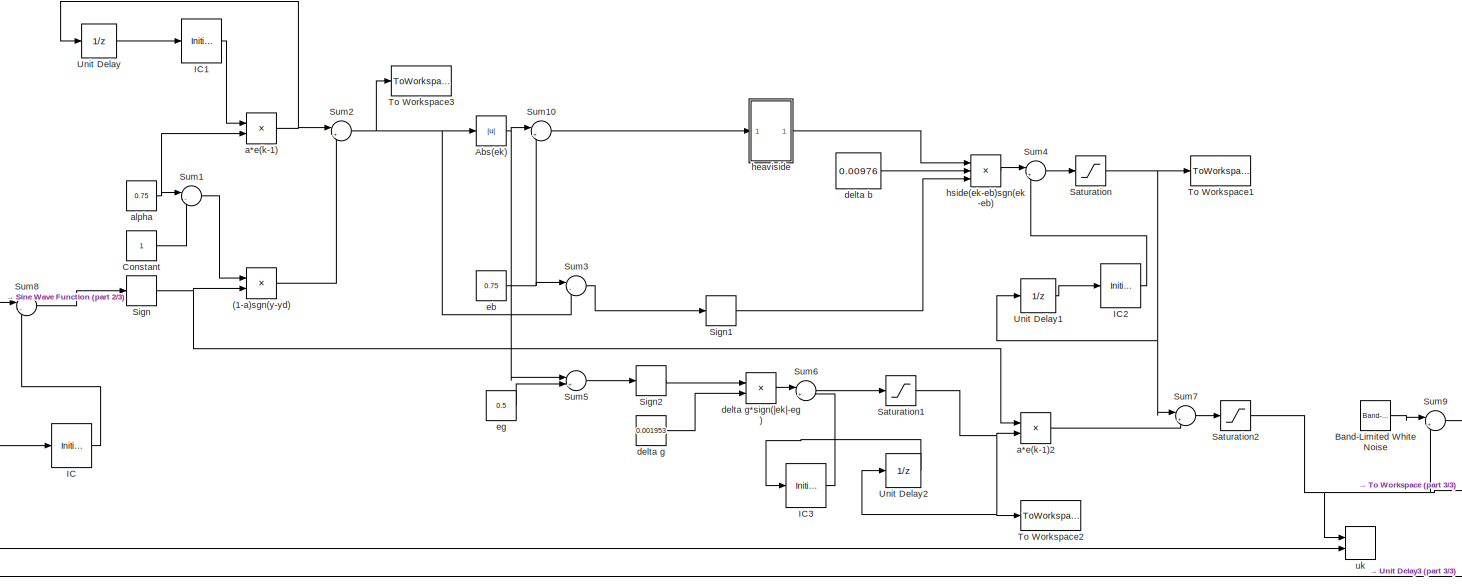
[diagram: root canvas - part 1/3, most of the canvas]
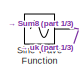
[diagram: root canvas - part 2/3, middle left region]
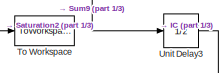
[diagram: root canvas - part 3/3, bottom right region]
MODEL slx_e6e3c1220217
KIND model
CONFIG AbsTol = auto
CONFIG FixedStep = 0.1
CONFIG MaxStep = auto
CONFIG MinStep = auto
CONFIG RelTol = 1e-3
CONFIG SampleTimeConstraint = Unconstrained
CONFIG Solver = ode3
CONFIG SolverMode = Auto
CONFIG SolverName = ode3
CONFIG StartTime = 0.0
CONFIG StopTime = 10.0
BLOCK [Product] (1-a)sgn(y-yd)
  InputSameDT = off
  OutDataTypeStr = Inherit: Inherit via internal rule
  Ports = [2, 1]
  RndMeth = Floor
  SaturateOnIntegerOverflow = off
BLOCK [Abs] Abs(ek)
  SaturateOnIntegerOverflow = off
BLOCK [Reference] Band-Limited White Noise  REF=simulink/Sources/Band-Limited
White Noise
  Cov = [0.1]
  Ports = [0, 1]
  SourceBlock = simulink/Sources/Band-Limited\nWhite Noise
  SourceType = Band-Limited White Noise.
  Ts = 0.1
  VectorParams1D = on
  seed = [23341]
BLOCK [Constant] Constant
BLOCK [InitialCondition] IC
BLOCK [InitialCondition] IC1
BLOCK [InitialCondition] IC2
BLOCK [InitialCondition] IC3
BLOCK [Saturate] Saturation
  InputPortMap = u0
  LowerLimit = 0
  Ports = [1, 1]
  UpperLimit = 1
BLOCK [Saturate] Saturation1
  InputPortMap = u0
  LowerLimit = 0
  Ports = [1, 1]
  UpperLimit = 1
BLOCK [Saturate] Saturation2
  InputPortMap = u0
  LowerLimit = 0
  Ports = [1, 1]
  UpperLimit = 1
BLOCK [Signum] Sign
BLOCK [Signum] Sign1
BLOCK [Signum] Sign2
BLOCK [Sin] Sine Wave Function
  Ports = [0, 1]
  SampleTime = 0.1
BLOCK [Sum] Sum1
  IconShape = round
  InputSameDT = off
  Inputs = |-+
  OutDataTypeStr = Inherit: Inherit via internal rule
  Ports = [2, 1]
  SaturateOnIntegerOverflow = off
BLOCK [Sum] Sum10
  IconShape = round
  InputSameDT = off
  Inputs = |+-
  OutDataTypeStr = Inherit: Inherit via internal rule
  Ports = [2, 1]
  SaturateOnIntegerOverflow = off
BLOCK [Sum] Sum2
  IconShape = round
  InputSameDT = off
  Inputs = |++
  OutDataTypeStr = Inherit: Inherit via internal rule
  Ports = [2, 1]
  SaturateOnIntegerOverflow = off
BLOCK [Sum] Sum3
  IconShape = round
  InputSameDT = off
  Inputs = |-+
  OutDataTypeStr = Inherit: Inherit via internal rule
  Ports = [2, 1]
  SaturateOnIntegerOverflow = off
BLOCK [Sum] Sum4
  IconShape = round
  InputSameDT = off
  Inputs = |++
  OutDataTypeStr = Inherit: Inherit via internal rule
  Ports = [2, 1]
  SaturateOnIntegerOverflow = off
BLOCK [Sum] Sum5
  IconShape = round
  InputSameDT = off
  Inputs = |+-
  OutDataTypeStr = Inherit: Inherit via internal rule
  Ports = [2, 1]
  SaturateOnIntegerOverflow = off
BLOCK [Sum] Sum6
  IconShape = round
  InputSameDT = off
  Inputs = |++
  OutDataTypeStr = Inherit: Inherit via internal rule
  Ports = [2, 1]
  SaturateOnIntegerOverflow = off
BLOCK [Sum] Sum7
  IconShape = round
  InputSameDT = off
  Inputs = |++
  OutDataTypeStr = Inherit: Inherit via internal rule
  Ports = [2, 1]
  SaturateOnIntegerOverflow = off
BLOCK [Sum] Sum8
  IconShape = round
  InputSameDT = off
  Inputs = |-+
  OutDataTypeStr = Inherit: Inherit via internal rule
  Ports = [2, 1]
  SaturateOnIntegerOverflow = off
BLOCK [Sum] Sum9
  IconShape = round
  InputSameDT = off
  Inputs = |++
  OutDataTypeStr = Inherit: Inherit via internal rule
  Ports = [2, 1]
  SaturateOnIntegerOverflow = off
BLOCK [ToWorkspace] To Workspace
  FixptAsFi = on
  MaxDataPoints = inf
  Ports = [1]
  SampleTime = -1
  Save2DSignal = 3-D array (concatenate along third dimension)
  VariableName = uk
BLOCK [ToWorkspace] To Workspace1
  FixptAsFi = on
  MaxDataPoints = inf
  Ports = [1]
  SampleTime = -1
  Save2DSignal = 3-D array (concatenate along third dimension)
  VariableName = bk
BLOCK [ToWorkspace] To Workspace2
  FixptAsFi = on
  MaxDataPoints = inf
  Ports = [1]
  SampleTime = -1
  Save2DSignal = 3-D array (concatenate along third dimension)
  VariableName = gk
BLOCK [ToWorkspace] To Workspace3
  FixptAsFi = on
  MaxDataPoints = inf
  Ports = [1]
  SampleTime = -1
  Save2DSignal = 3-D array (concatenate along third dimension)
  VariableName = ek
BLOCK [UnitDelay] Unit Delay
  InputProcessing = Columns as channels (frame based)
  SampleTime = -1
BLOCK [UnitDelay] Unit Delay1
  InputProcessing = Elements as channels (sample based)
  SampleTime = -1
BLOCK [UnitDelay] Unit Delay2
  InputProcessing = Columns as channels (frame based)
  SampleTime = -1
BLOCK [UnitDelay] Unit Delay3
  InputProcessing = Elements as channels (sample based)
  SampleTime = -1
BLOCK [Product] a*e(k-1)
  InputSameDT = off
  OutDataTypeStr = Inherit: Inherit via internal rule
  Ports = [2, 1]
  RndMeth = Floor
  SaturateOnIntegerOverflow = off
BLOCK [Product] a*e(k-1)2
  InputSameDT = off
  OutDataTypeStr = Inherit: Inherit via internal rule
  Ports = [2, 1]
  RndMeth = Floor
  SaturateOnIntegerOverflow = off
BLOCK [Constant] alpha
  Value = 0.75
BLOCK [Constant] delta b
  Value = 0.00976
BLOCK [Constant] delta g
  Value = 0.001953
BLOCK [Product] delta g*sign(|ek|-eg)
  InputSameDT = off
  OutDataTypeStr = Inherit: Inherit via internal rule
  Ports = [2, 1]
  RndMeth = Floor
  SaturateOnIntegerOverflow = off
BLOCK [Constant] eb
  Value = 0.75
BLOCK [Constant] eg
  Value = 0.5
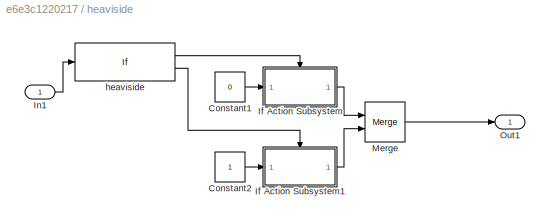
BLOCK [SubSystem] heaviside
  Ports = [1, 1]
  RequestExecContextInheritance = off
BLOCK [Constant] heaviside/Constant1
  Value = 0
BLOCK [Constant] heaviside/Constant2
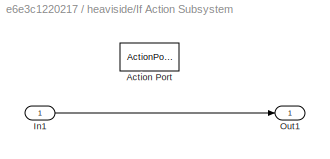
BLOCK [SubSystem] heaviside/If Action Subsystem
  Ports = [1, 1, 0, 0, 0, 0, 0, 1]
  RequestExecContextInheritance = off
  TreatAsAtomicUnit = on
BLOCK [ActionPort] heaviside/If Action Subsystem/Action Port
  ActionType = then
BLOCK [Inport] heaviside/If Action Subsystem/In1
  IconDisplay = Port number
BLOCK [Outport] heaviside/If Action Subsystem/Out1
  IconDisplay = Port number
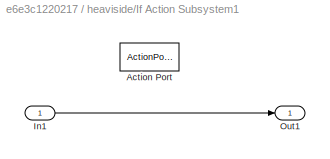
BLOCK [SubSystem] heaviside/If Action Subsystem1
  Ports = [1, 1, 0, 0, 0, 0, 0, 1]
  RequestExecContextInheritance = off
  TreatAsAtomicUnit = on
BLOCK [ActionPort] heaviside/If Action Subsystem1/Action Port
  ActionType = else
BLOCK [Inport] heaviside/If Action Subsystem1/In1
  IconDisplay = Port number
BLOCK [Outport] heaviside/If Action Subsystem1/Out1
  IconDisplay = Port number
BLOCK [Inport] heaviside/In1
  IconDisplay = Port number
BLOCK [Merge] heaviside/Merge
  Ports = [2, 1]
BLOCK [Outport] heaviside/Out1
  IconDisplay = Port number
BLOCK [If] heaviside/heaviside
  IfExpression = u1 < 0
  Ports = [1, 2]
BLOCK [Product] hside(ek-eb)sgn(ek-eb)
  InputSameDT = off
  Inputs = 3
  OutDataTypeStr = Inherit: Inherit via internal rule
  Ports = [3, 1]
  RndMeth = Floor
  SaturateOnIntegerOverflow = off
BLOCK [TimeScope] uk
  NumInputPorts = 2
  Ports = [2]
  ScopeSpecificationString = Simulink.scopes.TimeScopeBlockCfg('CurrentConfiguration', extmgr.ConfigurationSet(extmgr.Configuration('Core','General UI',true),extmgr.Configuration('Core','Source UI',true),extmgr.Configuration('Sources','WiredSimulink',true,'DataLoggingLimitDataPoints',true,'DataLoggingDecimation','1','DataLoggingDecimateData',true,'DataLoggingSaveFormat','Array'),extmgr.Configuration('Visuals','Time Domain',tr...<+1626ch>
LINE (1-a)sgn(y-yd):1 -> Sum2:2
NET Abs(ek):1 -> Sum10:1, Sum5:1
LINE Band-Limited White Noise:1 -> Sum9:1
LINE Constant:1 -> Sum1:2
LINE IC1:1 -> a*e(k-1):1
LINE IC2:1 -> Sum4:2
LINE IC3:1 -> Sum6:2
LINE IC:1 -> Sum8:2
NET Saturation1:1 -> To Workspace2:1, Unit Delay2:1, a*e(k-1)2:2
NET Saturation2:1 -> Sum9:2, To Workspace:1, uk:1
NET Saturation:1 -> Sum7:1, To Workspace1:1, Unit Delay1:1
LINE Sign1:1 -> hside(ek-eb)sgn(ek-eb):3
LINE Sign2:1 -> delta g*sign(|ek|-eg):1
NET Sign:1 -> (1-a)sgn(y-yd):2, a*e(k-1)2:1
NET Sine Wave Function:1 -> Sum8:1, uk:2
LINE Sum10:1 -> heaviside:1
LINE Sum1:1 -> (1-a)sgn(y-yd):1
NET Sum2:1 -> Abs(ek):1, Sum3:2, To Workspace3:1
LINE Sum3:1 -> Sign1:1
LINE Sum4:1 -> Saturation:1
LINE Sum5:1 -> Sign2:1
LINE Sum6:1 -> Saturation1:1
LINE Sum7:1 -> Saturation2:1
LINE Sum8:1 -> Sign:1
LINE Sum9:1 -> Unit Delay3:1
LINE Unit Delay1:1 -> IC2:1
LINE Unit Delay2:1 -> IC3:1
LINE Unit Delay3:1 -> IC:1
LINE Unit Delay:1 -> IC1:1
LINE a*e(k-1)2:1 -> Sum7:2
NET a*e(k-1):1 -> Sum2:1, Unit Delay:1
NET alpha:1 -> Sum1:1, a*e(k-1):2
LINE delta b:1 -> hside(ek-eb)sgn(ek-eb):2
LINE delta g*sign(|ek|-eg):1 -> Sum6:1
LINE delta g:1 -> delta g*sign(|ek|-eg):2
NET eb:1 -> Sum10:2, Sum3:1
LINE eg:1 -> Sum5:2
LINE heaviside/Constant1:1 -> heaviside/If Action Subsystem:1
LINE heaviside/Constant2:1 -> heaviside/If Action Subsystem1:1
LINE heaviside/If Action Subsystem/In1:1 -> heaviside/If Action Subsystem/Out1:1
LINE heaviside/If Action Subsystem1/In1:1 -> heaviside/If Action Subsystem1/Out1:1
LINE heaviside/If Action Subsystem1:1 -> heaviside/Merge:2
LINE heaviside/If Action Subsystem:1 -> heaviside/Merge:1
LINE heaviside/In1:1 -> heaviside/heaviside:1
LINE heaviside/Merge:1 -> heaviside/Out1:1
LINE heaviside/heaviside:1 -> heaviside/If Action Subsystem:ifaction
LINE heaviside/heaviside:2 -> heaviside/If Action Subsystem1:ifaction
LINE heaviside:1 -> hside(ek-eb)sgn(ek-eb):1
LINE hside(ek-eb)sgn(ek-eb):1 -> Sum4:1
note: NET lines group one-source signal fan-out (src -> all destinations, sorted); 1:1 wires keep LINE
